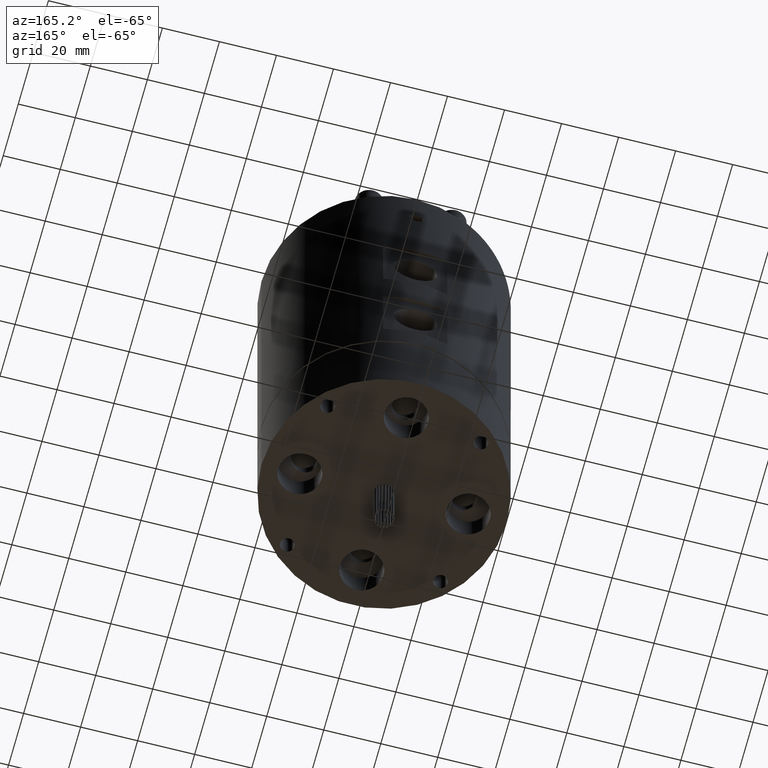
[diagram: clean part render]
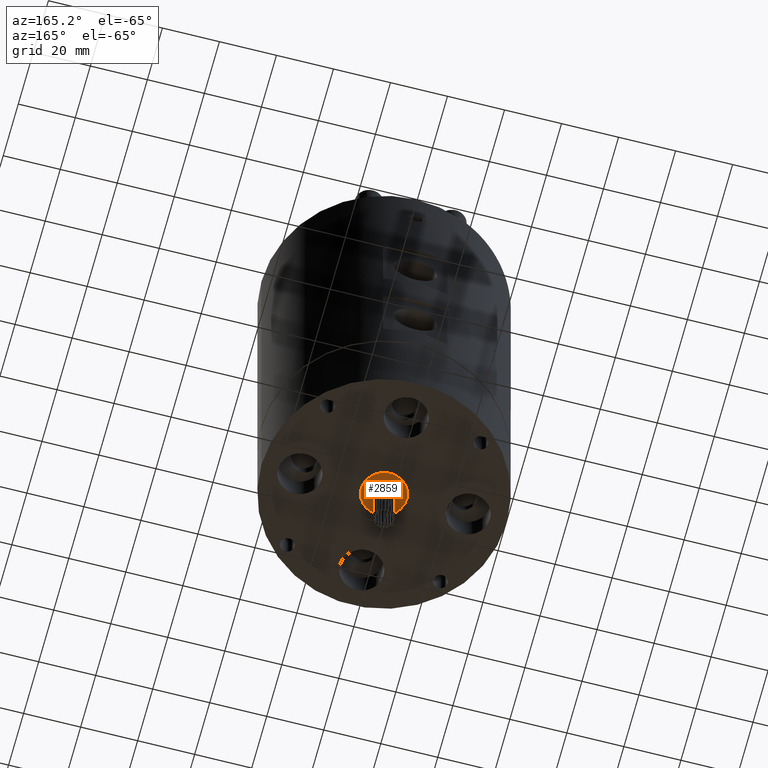
[diagram: same view with one face highlighted and labeled with its STEP entity id]
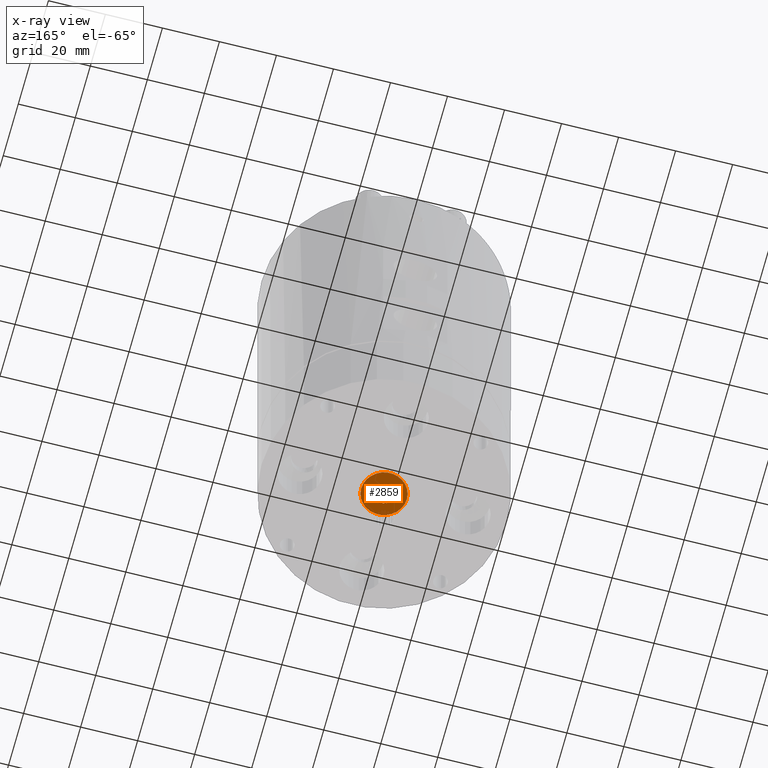
[diagram: x-ray of the same camera — body ghosted, the highlighted face saturated]
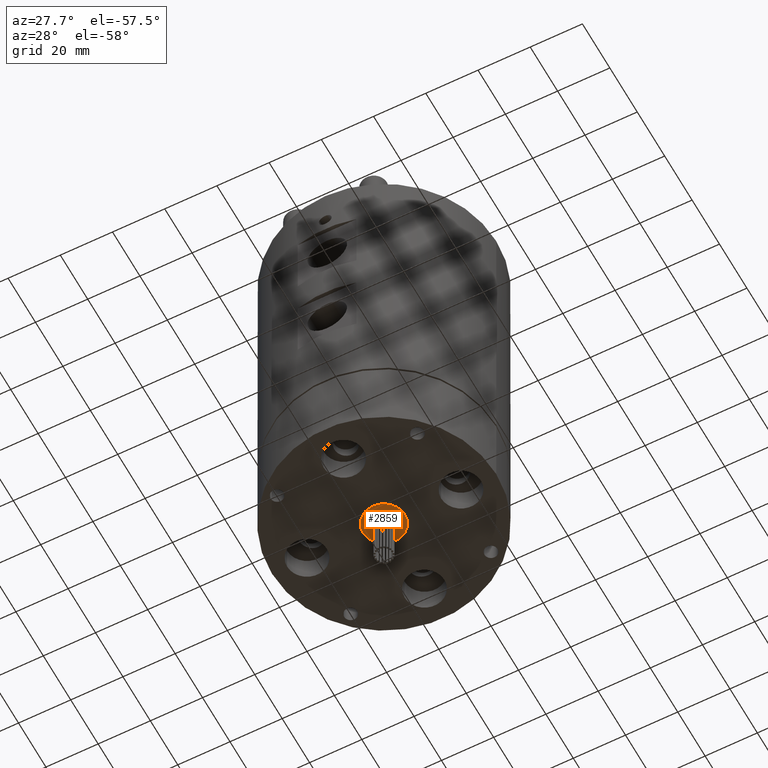
[diagram: same view with one face highlighted and labeled with its STEP entity id]
A machine part, auxiliary view. The second image highlights one B-rep face of the part: STEP entity #2859.
The next image is the same camera in x-ray: the body ghosted, the highlighted face saturated — about 0% of this face is hidden behind the body in this view.
A second angle (auxiliary view) of the same face is appended — the face is thin or edge-on in the first view.
In plain terms, the highlighted planar face has unit normal (0, 0, -1).
Its self-contained STEP definition (entity closure, byte-faithful):
#21 = FACE_BOUND ( 'NONE', #2101, .T. ) ;
#44 = DIRECTION ( 'NONE',  ( 0.0000000000000000000, 0.0000000000000000000, -1.000000000000000000 ) ) ;
#50 = CIRCLE ( 'NONE', #8599, 0.3999999999999997400 ) ;
#53 = AXIS2_PLACEMENT_3D ( 'NONE', #4240, #44, #4939 ) ;
#60 = VERTEX_POINT ( 'NONE', #2757 ) ;
#117 = CIRCLE ( 'NONE', #2785, 0.4000000000000006300 ) ;
#166 = EDGE_LOOP ( 'NONE', ( #3138, #1151 ) ) ;
#188 = DIRECTION ( 'NONE',  ( -1.000000000000000000, 0.0000000000000000000, 0.0000000000000000000 ) ) ;
#197 = DIRECTION ( 'NONE',  ( -1.000000000000000000, 0.0000000000000000000, 0.0000000000000000000 ) ) ;
#233 = FACE_BOUND ( 'NONE', #3782, .T. ) ;
#273 = CARTESIAN_POINT ( 'NONE',  ( 8.000000000000000000, 9.797174393178825700E-016, 0.1000000000000000100 ) ) ;
#278 = DIRECTION ( 'NONE',  ( 0.0000000000000000000, 0.0000000000000000000, -1.000000000000000000 ) ) ;
#305 = CARTESIAN_POINT ( 'NONE',  ( 2.612778192251610200, -1.178725548789799800, 0.1000000000000000100 ) ) ;
#412 = AXIS2_PLACEMENT_3D ( 'NONE', #1062, #5927, #1787 ) ;
#414 = CARTESIAN_POINT ( 'NONE',  ( 2.665592170507467000, 1.033620336100366400, 0.1000000000000000100 ) ) ;
#460 = CARTESIAN_POINT ( 'NONE',  ( 2.027937554184815500, -2.138070529251939100, 0.1000000000000000100 ) ) ;
#508 = CARTESIAN_POINT ( 'NONE',  ( -2.827937554184823300, 2.138070529252035400, 0.1000000000000000100 ) ) ;
#555 = CARTESIAN_POINT ( 'NONE',  ( 1.683981501920970300, 2.762323778318733800, 0.1000000000000000100 ) ) ;
#584 = ORIENTED_EDGE ( 'NONE', *, *, #4484, .T. ) ;
#591 = CARTESIAN_POINT ( 'NONE',  ( 1.037654616322646800, 3.171690865352353200, 0.1000000000000000100 ) ) ;
#596 = AXIS2_PLACEMENT_3D ( 'NONE', #7728, #3596, #8416 ) ;
#598 = VERTEX_POINT ( 'NONE', #591 ) ;
#612 = VERTEX_POINT ( 'NONE', #508 ) ;
#644 = ORIENTED_EDGE ( 'NONE', *, *, #4407, .F. ) ;
#645 = EDGE_LOOP ( 'NONE', ( #4006, #6352 ) ) ;
#647 = DIRECTION ( 'NONE',  ( -1.000000000000000000, 0.0000000000000000000, 0.0000000000000000000 ) ) ;
#654 = CARTESIAN_POINT ( 'NONE',  ( 3.012778192251610600, -1.178725548789799800, 0.1000000000000000100 ) ) ;
#716 = EDGE_CURVE ( 'NONE', #5091, #6036, #3409, .T. ) ;
#738 = CARTESIAN_POINT ( 'NONE',  ( 0.0000000000000000000, 0.0000000000000000000, 0.1000000000000000100 ) ) ;
#767 = CARTESIAN_POINT ( 'NONE',  ( -1.037654616322654100, -3.171690865352256000, 0.1000000000000000100 ) ) ;
#787 = AXIS2_PLACEMENT_3D ( 'NONE', #8994, #4849, #647 ) ;
#818 = VERTEX_POINT ( 'NONE', #2292 ) ;
#854 = CARTESIAN_POINT ( 'NONE',  ( -2.612778192251618200, 1.178725548789897100, 0.1000000000000000100 ) ) ;
#865 = VERTEX_POINT ( 'NONE', #4505 ) ;
#874 = EDGE_CURVE ( 'NONE', #3820, #8882, #7154, .T. ) ;
#897 = CIRCLE ( 'NONE', #7630, 0.4000000000000006300 ) ;
#909 = PLANE ( 'NONE',  #6412 ) ;
#932 = AXIS2_PLACEMENT_3D ( 'NONE', #7301, #3181, #8002 ) ;
#938 = VERTEX_POINT ( 'NONE', #6505 ) ;
#997 = CARTESIAN_POINT ( 'NONE',  ( 1.683981501920970300, 2.762323778318733800, 0.1000000000000000100 ) ) ;
#1023 = CARTESIAN_POINT ( 'NONE',  ( 0.4855828267840408000, -3.198505224852531600, 0.1000000000000000100 ) ) ;
#1033 = EDGE_LOOP ( 'NONE', ( #4115, #7427 ) ) ;
#1037 = VERTEX_POINT ( 'NONE', #7271 ) ;
#1051 = CARTESIAN_POINT ( 'NONE',  ( -1.550251814541312200, 2.839532649326028200, 0.1000000000000000100 ) ) ;
#1062 = CARTESIAN_POINT ( 'NONE',  ( 0.0000000000000000000, 0.0000000000000000000, 0.1000000000000000100 ) ) ;
#1111 = AXIS2_PLACEMENT_3D ( 'NONE', #7480, #3362, #8188 ) ;
#1128 = CIRCLE ( 'NONE', #1315, 0.3999999999999999700 ) ;
#1142 = AXIS2_PLACEMENT_3D ( 'NONE', #654, #5529, #1362 ) ;
#1151 = ORIENTED_EDGE ( 'NONE', *, *, #6637, .F. ) ;
#1177 = CIRCLE ( 'NONE', #932, 0.3999999999999993000 ) ;
#1187 = DIRECTION ( 'NONE',  ( 0.0000000000000000000, 0.0000000000000000000, -1.000000000000000000 ) ) ;
#1219 = EDGE_CURVE ( 'NONE', #8865, #4662, #6613, .T. ) ;
#1255 = ORIENTED_EDGE ( 'NONE', *, *, #5637, .F. ) ;
#1272 = DIRECTION ( 'NONE',  ( -1.000000000000000000, 0.0000000000000000000, 0.0000000000000000000 ) ) ;
#1273 = DIRECTION ( 'NONE',  ( 0.0000000000000000000, 0.0000000000000000000, -1.000000000000000000 ) ) ;
#1284 = DIRECTION ( 'NONE',  ( -1.000000000000000000, 0.0000000000000000000, 0.0000000000000000000 ) ) ;
#1293 = ORIENTED_EDGE ( 'NONE', *, *, #2654, .F. ) ;
#1299 = ORIENTED_EDGE ( 'NONE', *, *, #8974, .F. ) ;
#1315 = AXIS2_PLACEMENT_3D ( 'NONE', #2458, #7272, #3163 ) ;
#1343 = CIRCLE ( 'NONE', #787, 0.4000000000000006300 ) ;
#1362 = DIRECTION ( 'NONE',  ( -1.000000000000000000, 0.0000000000000000000, 0.0000000000000000000 ) ) ;
#1423 = EDGE_CURVE ( 'NONE', #8574, #7673, #1177, .T. ) ;
#1424 = ORIENTED_EDGE ( 'NONE', *, *, #2356, .T. ) ;
#1430 = DIRECTION ( 'NONE',  ( 0.0000000000000000000, 0.0000000000000000000, -1.000000000000000000 ) ) ;
#1431 = AXIS2_PLACEMENT_3D ( 'NONE', #4039, #8880, #4731 ) ;
#1455 = AXIS2_PLACEMENT_3D ( 'NONE', #1740, #6571, #2456 ) ;
#1457 = DIRECTION ( 'NONE',  ( -1.000000000000000000, 0.0000000000000000000, 0.0000000000000000000 ) ) ;
#1479 = ORIENTED_EDGE ( 'NONE', *, *, #1745, .F. ) ;
#1496 = AXIS2_PLACEMENT_3D ( 'NONE', #3599, #8418, #4290 ) ;
#1521 = EDGE_LOOP ( 'NONE', ( #644, #5977 ) ) ;
#1528 = AXIS2_PLACEMENT_3D ( 'NONE', #4035, #8874, #4727 ) ;
#1542 = CIRCLE ( 'NONE', #3705, 0.4000000000000006300 ) ;
#1583 = CARTESIAN_POINT ( 'NONE',  ( -8.000000000000000000, 0.0000000000000000000, 0.1000000000000000100 ) ) ;
#1609 = ORIENTED_EDGE ( 'NONE', *, *, #6389, .F. ) ;
#1628 = EDGE_CURVE ( 'NONE', #6035, #7829, #6382, .T. ) ;
#1654 = CIRCLE ( 'NONE', #1810, 0.4000000000000009100 ) ;
#1658 = FACE_BOUND ( 'NONE', #1033, .T. ) ;
#1678 = CARTESIAN_POINT ( 'NONE',  ( 2.127195365467565500, 2.019779676062781100, 0.1000000000000000100 ) ) ;
#1690 = EDGE_LOOP ( 'NONE', ( #8433, #6968 ) ) ;
#1711 = AXIS2_PLACEMENT_3D ( 'NONE', #2891, #7716, #3585 ) ;
#1717 = DIRECTION ( 'NONE',  ( -1.000000000000000000, 0.0000000000000000000, 0.0000000000000000000 ) ) ;
#1740 = CARTESIAN_POINT ( 'NONE',  ( -0.4855828267840489000, 3.198505224852628400, 0.1000000000000000100 ) ) ;
#1745 = EDGE_CURVE ( 'NONE', #1037, #5083, #7370, .T. ) ;
#1749 = DIRECTION ( 'NONE',  ( -1.000000000000000000, 0.0000000000000000000, 0.0000000000000000000 ) ) ;
#1758 = CARTESIAN_POINT ( 'NONE',  ( 0.4855828267840408000, -3.198505224852531600, 0.1000000000000000100 ) ) ;
#1774 = ORIENTED_EDGE ( 'NONE', *, *, #2776, .F. ) ;
#1775 = DIRECTION ( 'NONE',  ( -1.000000000000000000, 0.0000000000000000000, 0.0000000000000000000 ) ) ;
#1787 = DIRECTION ( 'NONE',  ( -1.000000000000000000, 0.0000000000000000000, 0.0000000000000000000 ) ) ;
#1809 = CARTESIAN_POINT ( 'NONE',  ( -2.834233316462286400, 0.07720887100734269400, 0.1000000000000000100 ) ) ;
#1810 = AXIS2_PLACEMENT_3D ( 'NONE', #1023, #5892, #1749 ) ;
#1847 = VERTEX_POINT ( 'NONE', #1809 ) ;
#1871 = ORIENTED_EDGE ( 'NONE', *, *, #3913, .F. ) ;
#1880 = DIRECTION ( 'NONE',  ( 0.0000000000000000000, 0.0000000000000000000, -1.000000000000000000 ) ) ;
#1897 = FACE_BOUND ( 'NONE', #5345, .T. ) ;
#1958 = EDGE_CURVE ( 'NONE', #598, #3619, #3340, .T. ) ;
#1997 = EDGE_CURVE ( 'NONE', #612, #5295, #6777, .T. ) ;
#2012 = CIRCLE ( 'NONE', #3376, 0.4000000000000004100 ) ;
#2038 = CARTESIAN_POINT ( 'NONE',  ( 1.150251814541305700, -2.839532649325930500, 0.1000000000000000100 ) ) ;
#2090 = AXIS2_PLACEMENT_3D ( 'NONE', #1758, #6594, #2474 ) ;
#2101 = EDGE_LOOP ( 'NONE', ( #2924, #3921 ) ) ;
#2117 = AXIS2_PLACEMENT_3D ( 'NONE', #7652, #3518, #8342 ) ;
#2123 = FACE_BOUND ( 'NONE', #4982, .T. ) ;
#2221 = CARTESIAN_POINT ( 'NONE',  ( -3.012778192251618600, 1.178725548789897100, 0.1000000000000000100 ) ) ;
#2264 = DIRECTION ( 'NONE',  ( 0.0000000000000000000, 0.0000000000000000000, -1.000000000000000000 ) ) ;
#2292 = CARTESIAN_POINT ( 'NONE',  ( -1.283981501920977900, -2.762323778318636100, 0.1000000000000000100 ) ) ;
#2307 = AXIS2_PLACEMENT_3D ( 'NONE', #6653, #2534, #7351 ) ;
#2356 = EDGE_CURVE ( 'NONE', #4424, #7043, #5579, .T. ) ;
#2368 = CIRCLE ( 'NONE', #6268, 0.4000000000000006300 ) ;
#2405 = DIRECTION ( 'NONE',  ( 0.0000000000000000000, 0.0000000000000000000, -1.000000000000000000 ) ) ;
#2443 = CIRCLE ( 'NONE', #6176, 0.4000000000000006300 ) ;
#2456 = DIRECTION ( 'NONE',  ( -1.000000000000000000, 0.0000000000000000000, 0.0000000000000000000 ) ) ;
#2458 = CARTESIAN_POINT ( 'NONE',  ( 0.6376546163226469700, 3.171690865352353200, 0.1000000000000000100 ) ) ;
#2474 = DIRECTION ( 'NONE',  ( -1.000000000000000000, 0.0000000000000000000, 0.0000000000000000000 ) ) ;
#2534 = DIRECTION ( 'NONE',  ( 0.0000000000000000000, 0.0000000000000000000, -1.000000000000000000 ) ) ;
#2549 = DIRECTION ( 'NONE',  ( 0.0000000000000000000, 0.0000000000000000000, -1.000000000000000000 ) ) ;
#2562 = AXIS2_PLACEMENT_3D ( 'NONE', #7997, #3863, #8694 ) ;
#2583 = CIRCLE ( 'NONE', #5058, 0.4000000000000006300 ) ;
#2654 = EDGE_CURVE ( 'NONE', #3474, #818, #2012, .T. ) ;
#2757 = CARTESIAN_POINT ( 'NONE',  ( 3.412778192251611400, -1.178725548789799800, 0.1000000000000000100 ) ) ;
#2776 = EDGE_CURVE ( 'NONE', #7829, #6035, #6651, .T. ) ;
#2780 = DIRECTION ( 'NONE',  ( 0.0000000000000000000, 0.0000000000000000000, -1.000000000000000000 ) ) ;
#2785 = AXIS2_PLACEMENT_3D ( 'NONE', #3924, #8749, #4617 ) ;
#2818 = ORIENTED_EDGE ( 'NONE', *, *, #1958, .F. ) ;
#2857 = VERTEX_POINT ( 'NONE', #4404 ) ;
#2859 = ADVANCED_FACE ( 'NONE', ( #8291, #6002, #7633, #5781, #3971, #4186, #2123, #233, #7408, #5571, #3743, #1897, #21, #7182, #5360, #3533, #1658, #8833, #6979 ), #909, .T. ) ;
#2891 = CARTESIAN_POINT ( 'NONE',  ( -3.012778192251618600, 1.178725548789897100, 0.1000000000000000100 ) ) ;
#2924 = ORIENTED_EDGE ( 'NONE', *, *, #1219, .F. ) ;
#2927 = DIRECTION ( 'NONE',  ( -1.000000000000000000, 0.0000000000000000000, 0.0000000000000000000 ) ) ;
#2997 = EDGE_CURVE ( 'NONE', #865, #8531, #3853, .T. ) ;
#3001 = EDGE_CURVE ( 'NONE', #8374, #3301, #5668, .T. ) ;
#3043 = CARTESIAN_POINT ( 'NONE',  ( 0.0000000000000000000, 0.0000000000000000000, 0.1000000000000000100 ) ) ;
#3047 = AXIS2_PLACEMENT_3D ( 'NONE', #5584, #1430, #6273 ) ;
#3053 = VERTEX_POINT ( 'NONE', #8030 ) ;
#3092 = VERTEX_POINT ( 'NONE', #8751 ) ;
#3138 = ORIENTED_EDGE ( 'NONE', *, *, #3803, .F. ) ;
#3159 = CARTESIAN_POINT ( 'NONE',  ( -1.550251814541312200, 2.839532649326028200, 0.1000000000000000100 ) ) ;
#3163 = DIRECTION ( 'NONE',  ( -1.000000000000000000, 0.0000000000000000000, 0.0000000000000000000 ) ) ;
#3181 = DIRECTION ( 'NONE',  ( 0.0000000000000000000, 0.0000000000000000000, -1.000000000000000000 ) ) ;
#3237 = CARTESIAN_POINT ( 'NONE',  ( 3.465592170507465900, 1.033620336100366400, 0.1000000000000000100 ) ) ;
#3254 = CIRCLE ( 'NONE', #2117, 0.4000000000000004100 ) ;
#3282 = ORIENTED_EDGE ( 'NONE', *, *, #8497, .F. ) ;
#3301 = VERTEX_POINT ( 'NONE', #3469 ) ;
#3307 = AXIS2_PLACEMENT_3D ( 'NONE', #5365, #1187, #6050 ) ;
#3340 = CIRCLE ( 'NONE', #1528, 0.3999999999999999700 ) ;
#3362 = DIRECTION ( 'NONE',  ( 0.0000000000000000000, 0.0000000000000000000, -1.000000000000000000 ) ) ;
#3376 = AXIS2_PLACEMENT_3D ( 'NONE', #6901, #2780, #7605 ) ;
#3409 = CIRCLE ( 'NONE', #53, 0.4000000000000006300 ) ;
#3469 = CARTESIAN_POINT ( 'NONE',  ( -2.665592170507473700, -1.033620336100268900, 0.1000000000000000100 ) ) ;
#3474 = VERTEX_POINT ( 'NONE', #7582 ) ;
#3518 = DIRECTION ( 'NONE',  ( 0.0000000000000000000, 0.0000000000000000000, -1.000000000000000000 ) ) ;
#3533 = FACE_BOUND ( 'NONE', #6798, .T. ) ;
#3535 = DIRECTION ( 'NONE',  ( 0.0000000000000000000, 0.0000000000000000000, -1.000000000000000000 ) ) ;
#3566 = VERTEX_POINT ( 'NONE', #767 ) ;
#3569 = VERTEX_POINT ( 'NONE', #6320 ) ;
#3585 = DIRECTION ( 'NONE',  ( -1.000000000000000000, 0.0000000000000000000, 0.0000000000000000000 ) ) ;
#3596 = DIRECTION ( 'NONE',  ( 0.0000000000000000000, 0.0000000000000000000, -1.000000000000000000 ) ) ;
#3599 = CARTESIAN_POINT ( 'NONE',  ( -3.065592170507474000, -1.033620336100268900, 0.1000000000000000100 ) ) ;
#3619 = VERTEX_POINT ( 'NONE', #5720 ) ;
#3683 = EDGE_LOOP ( 'NONE', ( #7233, #8453 ) ) ;
#3705 = AXIS2_PLACEMENT_3D ( 'NONE', #6013, #1880, #6713 ) ;
#3723 = ORIENTED_EDGE ( 'NONE', *, *, #4208, .F. ) ;
#3734 = DIRECTION ( 'NONE',  ( -1.000000000000000000, 0.0000000000000000000, -0.0000000000000000000 ) ) ;
#3743 = FACE_BOUND ( 'NONE', #166, .T. ) ;
#3782 = EDGE_LOOP ( 'NONE', ( #4016, #6509 ) ) ;
#3797 = CIRCLE ( 'NONE', #1431, 0.4000000000000006300 ) ;
#3803 = EDGE_CURVE ( 'NONE', #8016, #5297, #897, .T. ) ;
#3820 = VERTEX_POINT ( 'NONE', #7295 ) ;
#3843 = DIRECTION ( 'NONE',  ( -1.000000000000000000, 0.0000000000000000000, 0.0000000000000000000 ) ) ;
#3853 = CIRCLE ( 'NONE', #2090, 0.4000000000000009100 ) ;
#3863 = DIRECTION ( 'NONE',  ( 0.0000000000000000000, 0.0000000000000000000, -1.000000000000000000 ) ) ;
#3864 = CARTESIAN_POINT ( 'NONE',  ( 3.234233316462279200, -0.07720887100724498100, 0.1000000000000000100 ) ) ;
#3913 = EDGE_CURVE ( 'NONE', #818, #3474, #6982, .T. ) ;
#3921 = ORIENTED_EDGE ( 'NONE', *, *, #5216, .F. ) ;
#3924 = CARTESIAN_POINT ( 'NONE',  ( -0.6376546163226536300, -3.171690865352256000, 0.1000000000000000100 ) ) ;
#3971 = FACE_BOUND ( 'NONE', #1521, .T. ) ;
#4003 = AXIS2_PLACEMENT_3D ( 'NONE', #738, #5605, #1457 ) ;
#4006 = ORIENTED_EDGE ( 'NONE', *, *, #7293, .F. ) ;
#4016 = ORIENTED_EDGE ( 'NONE', *, *, #8943, .F. ) ;
#4035 = CARTESIAN_POINT ( 'NONE',  ( 0.6376546163226469700, 3.171690865352353200, 0.1000000000000000100 ) ) ;
#4039 = CARTESIAN_POINT ( 'NONE',  ( 2.427937554184815800, -2.138070529251939100, 0.1000000000000000100 ) ) ;
#4068 = CIRCLE ( 'NONE', #2307, 0.4000000000000006300 ) ;
#4100 = VERTEX_POINT ( 'NONE', #6720 ) ;
#4102 = CIRCLE ( 'NONE', #7066, 0.4000000000000000800 ) ;
#4115 = ORIENTED_EDGE ( 'NONE', *, *, #4565, .F. ) ;
#4121 = ORIENTED_EDGE ( 'NONE', *, *, #7917, .F. ) ;
#4184 = CIRCLE ( 'NONE', #6337, 0.3999999999999993000 ) ;
#4186 = FACE_BOUND ( 'NONE', #645, .T. ) ;
#4208 = EDGE_CURVE ( 'NONE', #7673, #8574, #4184, .T. ) ;
#4240 = CARTESIAN_POINT ( 'NONE',  ( 2.527195365467566300, 2.019779676062781100, 0.1000000000000000100 ) ) ;
#4268 = CARTESIAN_POINT ( 'NONE',  ( 2.827937554184816600, -2.138070529251939100, 0.1000000000000000100 ) ) ;
#4290 = DIRECTION ( 'NONE',  ( -1.000000000000000000, 0.0000000000000000000, 0.0000000000000000000 ) ) ;
#4378 = DIRECTION ( 'NONE',  ( 0.0000000000000000000, 0.0000000000000000000, -1.000000000000000000 ) ) ;
#4388 = DIRECTION ( 'NONE',  ( 0.0000000000000000000, 0.0000000000000000000, -1.000000000000000000 ) ) ;
#4404 = CARTESIAN_POINT ( 'NONE',  ( -0.2376546163226529700, -3.171690865352256000, 0.1000000000000000100 ) ) ;
#4407 = EDGE_CURVE ( 'NONE', #6036, #5091, #2443, .T. ) ;
#4424 = VERTEX_POINT ( 'NONE', #273 ) ;
#4453 = VERTEX_POINT ( 'NONE', #305 ) ;
#4459 = CARTESIAN_POINT ( 'NONE',  ( 2.083981501920970600, 2.762323778318733800, 0.1000000000000000100 ) ) ;
#4466 = CARTESIAN_POINT ( 'NONE',  ( -2.527195365467573400, -2.019779676062683400, 0.1000000000000000100 ) ) ;
#4484 = EDGE_CURVE ( 'NONE', #7043, #4424, #7514, .T. ) ;
#4505 = CARTESIAN_POINT ( 'NONE',  ( 0.8855828267840417700, -3.198505224852531600, 0.1000000000000000100 ) ) ;
#4510 = EDGE_CURVE ( 'NONE', #3053, #8872, #4068, .T. ) ;
#4513 = EDGE_CURVE ( 'NONE', #3566, #2857, #117, .T. ) ;
#4516 = AXIS2_PLACEMENT_3D ( 'NONE', #997, #5854, #1717 ) ;
#4543 = EDGE_LOOP ( 'NONE', ( #584, #1424 ) ) ;
#4562 = DIRECTION ( 'NONE',  ( -1.000000000000000000, 0.0000000000000000000, 0.0000000000000000000 ) ) ;
#4565 = EDGE_CURVE ( 'NONE', #5295, #612, #1542, .T. ) ;
#4612 = AXIS2_PLACEMENT_3D ( 'NONE', #555, #5443, #1272 ) ;
#4617 = DIRECTION ( 'NONE',  ( -1.000000000000000000, 0.0000000000000000000, 0.0000000000000000000 ) ) ;
#4662 = VERTEX_POINT ( 'NONE', #460 ) ;
#4727 = DIRECTION ( 'NONE',  ( -1.000000000000000000, 0.0000000000000000000, 0.0000000000000000000 ) ) ;
#4731 = DIRECTION ( 'NONE',  ( -1.000000000000000000, 0.0000000000000000000, 0.0000000000000000000 ) ) ;
#4849 = DIRECTION ( 'NONE',  ( 0.0000000000000000000, 0.0000000000000000000, -1.000000000000000000 ) ) ;
#4888 = ORIENTED_EDGE ( 'NONE', *, *, #6557, .F. ) ;
#4919 = EDGE_LOOP ( 'NONE', ( #1871, #1293 ) ) ;
#4939 = DIRECTION ( 'NONE',  ( -1.000000000000000000, 0.0000000000000000000, 0.0000000000000000000 ) ) ;
#4982 = EDGE_LOOP ( 'NONE', ( #8881, #7464 ) ) ;
#5058 = AXIS2_PLACEMENT_3D ( 'NONE', #6663, #2549, #7365 ) ;
#5083 = VERTEX_POINT ( 'NONE', #4459 ) ;
#5091 = VERTEX_POINT ( 'NONE', #1678 ) ;
#5161 = DIRECTION ( 'NONE',  ( -1.000000000000000000, 0.0000000000000000000, 0.0000000000000000000 ) ) ;
#5169 = EDGE_LOOP ( 'NONE', ( #2818, #4888 ) ) ;
#5216 = EDGE_CURVE ( 'NONE', #4662, #8865, #3797, .T. ) ;
#5271 = AXIS2_PLACEMENT_3D ( 'NONE', #5444, #1273, #1284 ) ;
#5295 = VERTEX_POINT ( 'NONE', #7852 ) ;
#5296 = CIRCLE ( 'NONE', #1142, 0.4000000000000006300 ) ;
#5297 = VERTEX_POINT ( 'NONE', #5786 ) ;
#5310 = ORIENTED_EDGE ( 'NONE', *, *, #1423, .F. ) ;
#5345 = EDGE_LOOP ( 'NONE', ( #6484, #3282 ) ) ;
#5360 = FACE_BOUND ( 'NONE', #7562, .T. ) ;
#5365 = CARTESIAN_POINT ( 'NONE',  ( -1.683981501920978300, -2.762323778318636100, 0.1000000000000000100 ) ) ;
#5443 = DIRECTION ( 'NONE',  ( 0.0000000000000000000, 0.0000000000000000000, -1.000000000000000000 ) ) ;
#5444 = CARTESIAN_POINT ( 'NONE',  ( -2.427937554184822900, 2.138070529252035400, 0.1000000000000000100 ) ) ;
#5529 = DIRECTION ( 'NONE',  ( 0.0000000000000000000, 0.0000000000000000000, -1.000000000000000000 ) ) ;
#5571 = FACE_OUTER_BOUND ( 'NONE', #4543, .T. ) ;
#5579 = CIRCLE ( 'NONE', #4003, 8.000000000000000000 ) ;
#5584 = CARTESIAN_POINT ( 'NONE',  ( 1.550251814541306000, -2.839532649325930500, 0.1000000000000000100 ) ) ;
#5605 = DIRECTION ( 'NONE',  ( 0.0000000000000000000, 0.0000000000000000000, -1.000000000000000000 ) ) ;
#5637 = EDGE_CURVE ( 'NONE', #4100, #1847, #6041, .T. ) ;
#5668 = CIRCLE ( 'NONE', #2562, 0.4000000000000001900 ) ;
#5720 = CARTESIAN_POINT ( 'NONE',  ( 0.2376546163226470100, 3.171690865352353200, 0.1000000000000000100 ) ) ;
#5781 = FACE_BOUND ( 'NONE', #5169, .T. ) ;
#5786 = CARTESIAN_POINT ( 'NONE',  ( 2.834233316462278400, -0.07720887100724492500, 0.1000000000000000100 ) ) ;
#5854 = DIRECTION ( 'NONE',  ( 0.0000000000000000000, 0.0000000000000000000, -1.000000000000000000 ) ) ;
#5885 = CARTESIAN_POINT ( 'NONE',  ( 2.927195365467566600, 2.019779676062781100, 0.1000000000000000100 ) ) ;
#5892 = DIRECTION ( 'NONE',  ( 0.0000000000000000000, 0.0000000000000000000, -1.000000000000000000 ) ) ;
#5915 = DIRECTION ( 'NONE',  ( 0.0000000000000000000, 0.0000000000000000000, -1.000000000000000000 ) ) ;
#5927 = DIRECTION ( 'NONE',  ( 0.0000000000000000000, 0.0000000000000000000, -1.000000000000000000 ) ) ;
#5970 = ORIENTED_EDGE ( 'NONE', *, *, #9030, .F. ) ;
#5977 = ORIENTED_EDGE ( 'NONE', *, *, #716, .F. ) ;
#6002 = FACE_BOUND ( 'NONE', #7516, .T. ) ;
#6013 = CARTESIAN_POINT ( 'NONE',  ( -2.427937554184822900, 2.138070529252035400, 0.1000000000000000100 ) ) ;
#6035 = VERTEX_POINT ( 'NONE', #6573 ) ;
#6036 = VERTEX_POINT ( 'NONE', #5885 ) ;
#6038 = EDGE_CURVE ( 'NONE', #8882, #3820, #8752, .T. ) ;
#6041 = CIRCLE ( 'NONE', #596, 0.3999999999999997400 ) ;
#6050 = DIRECTION ( 'NONE',  ( -1.000000000000000000, 0.0000000000000000000, 0.0000000000000000000 ) ) ;
#6176 = AXIS2_PLACEMENT_3D ( 'NONE', #6521, #2405, #7224 ) ;
#6268 = AXIS2_PLACEMENT_3D ( 'NONE', #6386, #2264, #7084 ) ;
#6273 = DIRECTION ( 'NONE',  ( -1.000000000000000000, 0.0000000000000000000, 0.0000000000000000000 ) ) ;
#6296 = CARTESIAN_POINT ( 'NONE',  ( -2.927195365467573800, -2.019779676062683400, 0.1000000000000000100 ) ) ;
#6320 = CARTESIAN_POINT ( 'NONE',  ( -0.08558282678404878500, 3.198505224852628400, 0.1000000000000000100 ) ) ;
#6332 = EDGE_CURVE ( 'NONE', #3301, #8374, #6568, .T. ) ;
#6334 = CARTESIAN_POINT ( 'NONE',  ( -3.465592170507473900, -1.033620336100268900, 0.1000000000000000100 ) ) ;
#6337 = AXIS2_PLACEMENT_3D ( 'NONE', #7665, #3535, #8359 ) ;
#6352 = ORIENTED_EDGE ( 'NONE', *, *, #8744, .F. ) ;
#6382 = CIRCLE ( 'NONE', #1711, 0.4000000000000001900 ) ;
#6386 = CARTESIAN_POINT ( 'NONE',  ( -0.6376546163226536300, -3.171690865352256000, 0.1000000000000000100 ) ) ;
#6389 = EDGE_CURVE ( 'NONE', #3569, #938, #4102, .T. ) ;
#6412 = AXIS2_PLACEMENT_3D ( 'NONE', #3043, #7867, #3734 ) ;
#6484 = ORIENTED_EDGE ( 'NONE', *, *, #2997, .F. ) ;
#6488 = AXIS2_PLACEMENT_3D ( 'NONE', #4466, #278, #5161 ) ;
#6505 = CARTESIAN_POINT ( 'NONE',  ( -0.8855828267840490900, 3.198505224852628400, 0.1000000000000000100 ) ) ;
#6509 = ORIENTED_EDGE ( 'NONE', *, *, #4513, .F. ) ;
#6521 = CARTESIAN_POINT ( 'NONE',  ( 2.527195365467566300, 2.019779676062781100, 0.1000000000000000100 ) ) ;
#6557 = EDGE_CURVE ( 'NONE', #3619, #598, #1128, .T. ) ;
#6568 = CIRCLE ( 'NONE', #1496, 0.4000000000000001900 ) ;
#6571 = DIRECTION ( 'NONE',  ( 0.0000000000000000000, 0.0000000000000000000, -1.000000000000000000 ) ) ;
#6573 = CARTESIAN_POINT ( 'NONE',  ( -3.412778192251618500, 1.178725548789897100, 0.1000000000000000100 ) ) ;
#6594 = DIRECTION ( 'NONE',  ( 0.0000000000000000000, 0.0000000000000000000, -1.000000000000000000 ) ) ;
#6613 = CIRCLE ( 'NONE', #1111, 0.4000000000000006300 ) ;
#6624 = CARTESIAN_POINT ( 'NONE',  ( 3.634233316462279500, -0.07720887100724498100, 0.1000000000000000100 ) ) ;
#6637 = EDGE_CURVE ( 'NONE', #5297, #8016, #2583, .T. ) ;
#6651 = CIRCLE ( 'NONE', #8935, 0.4000000000000001900 ) ;
#6653 = CARTESIAN_POINT ( 'NONE',  ( -2.527195365467573400, -2.019779676062683400, 0.1000000000000000100 ) ) ;
#6663 = CARTESIAN_POINT ( 'NONE',  ( 3.234233316462279200, -0.07720887100724498100, 0.1000000000000000100 ) ) ;
#6713 = DIRECTION ( 'NONE',  ( -1.000000000000000000, 0.0000000000000000000, 0.0000000000000000000 ) ) ;
#6720 = CARTESIAN_POINT ( 'NONE',  ( -3.634233316462285800, 0.07720887100734275000, 0.1000000000000000100 ) ) ;
#6777 = CIRCLE ( 'NONE', #5271, 0.4000000000000006300 ) ;
#6798 = EDGE_LOOP ( 'NONE', ( #1609, #5970 ) ) ;
#6901 = CARTESIAN_POINT ( 'NONE',  ( -1.683981501920978300, -2.762323778318636100, 0.1000000000000000100 ) ) ;
#6968 = ORIENTED_EDGE ( 'NONE', *, *, #6038, .F. ) ;
#6979 = FACE_BOUND ( 'NONE', #8554, .T. ) ;
#6982 = CIRCLE ( 'NONE', #3307, 0.4000000000000004100 ) ;
#7011 = EDGE_LOOP ( 'NONE', ( #3723, #5310 ) ) ;
#7043 = VERTEX_POINT ( 'NONE', #1583 ) ;
#7045 = DIRECTION ( 'NONE',  ( 0.0000000000000000000, 0.0000000000000000000, -1.000000000000000000 ) ) ;
#7066 = AXIS2_PLACEMENT_3D ( 'NONE', #8508, #4378, #188 ) ;
#7084 = DIRECTION ( 'NONE',  ( -1.000000000000000000, 0.0000000000000000000, 0.0000000000000000000 ) ) ;
#7154 = CIRCLE ( 'NONE', #8919, 0.4000000000000006300 ) ;
#7182 = FACE_BOUND ( 'NONE', #7011, .T. ) ;
#7224 = DIRECTION ( 'NONE',  ( -1.000000000000000000, 0.0000000000000000000, 0.0000000000000000000 ) ) ;
#7233 = ORIENTED_EDGE ( 'NONE', *, *, #6332, .F. ) ;
#7271 = CARTESIAN_POINT ( 'NONE',  ( 1.283981501920970200, 2.762323778318733800, 0.1000000000000000100 ) ) ;
#7272 = DIRECTION ( 'NONE',  ( 0.0000000000000000000, 0.0000000000000000000, -1.000000000000000000 ) ) ;
#7293 = EDGE_CURVE ( 'NONE', #60, #4453, #1343, .T. ) ;
#7295 = CARTESIAN_POINT ( 'NONE',  ( -1.150251814541311600, 2.839532649326028200, 0.1000000000000000100 ) ) ;
#7301 = CARTESIAN_POINT ( 'NONE',  ( 3.065592170507466500, 1.033620336100366400, 0.1000000000000000100 ) ) ;
#7351 = DIRECTION ( 'NONE',  ( -1.000000000000000000, 0.0000000000000000000, 0.0000000000000000000 ) ) ;
#7365 = DIRECTION ( 'NONE',  ( -1.000000000000000000, 0.0000000000000000000, 0.0000000000000000000 ) ) ;
#7370 = CIRCLE ( 'NONE', #4516, 0.3999999999999999700 ) ;
#7408 = FACE_BOUND ( 'NONE', #4919, .T. ) ;
#7427 = ORIENTED_EDGE ( 'NONE', *, *, #1997, .F. ) ;
#7464 = ORIENTED_EDGE ( 'NONE', *, *, #8800, .F. ) ;
#7480 = CARTESIAN_POINT ( 'NONE',  ( 2.427937554184815800, -2.138070529251939100, 0.1000000000000000100 ) ) ;
#7514 = CIRCLE ( 'NONE', #412, 8.000000000000000000 ) ;
#7516 = EDGE_LOOP ( 'NONE', ( #1774, #8355 ) ) ;
#7557 = ORIENTED_EDGE ( 'NONE', *, *, #8663, .F. ) ;
#7562 = EDGE_LOOP ( 'NONE', ( #7557, #1479 ) ) ;
#7566 = CIRCLE ( 'NONE', #4612, 0.3999999999999999700 ) ;
#7582 = CARTESIAN_POINT ( 'NONE',  ( -2.083981501920978600, -2.762323778318636100, 0.1000000000000000100 ) ) ;
#7605 = DIRECTION ( 'NONE',  ( -1.000000000000000000, 0.0000000000000000000, 0.0000000000000000000 ) ) ;
#7630 = AXIS2_PLACEMENT_3D ( 'NONE', #3864, #8696, #4562 ) ;
#7633 = FACE_BOUND ( 'NONE', #1690, .T. ) ;
#7639 = CIRCLE ( 'NONE', #6488, 0.4000000000000006300 ) ;
#7652 = CARTESIAN_POINT ( 'NONE',  ( 1.550251814541306000, -2.839532649325930500, 0.1000000000000000100 ) ) ;
#7665 = CARTESIAN_POINT ( 'NONE',  ( 3.065592170507466500, 1.033620336100366400, 0.1000000000000000100 ) ) ;
#7673 = VERTEX_POINT ( 'NONE', #3237 ) ;
#7716 = DIRECTION ( 'NONE',  ( 0.0000000000000000000, 0.0000000000000000000, -1.000000000000000000 ) ) ;
#7728 = CARTESIAN_POINT ( 'NONE',  ( -3.234233316462285800, 0.07720887100734269400, 0.1000000000000000100 ) ) ;
#7742 = CARTESIAN_POINT ( 'NONE',  ( -1.950251814541313000, 2.839532649326028200, 0.1000000000000000100 ) ) ;
#7829 = VERTEX_POINT ( 'NONE', #854 ) ;
#7852 = CARTESIAN_POINT ( 'NONE',  ( -2.027937554184822100, 2.138070529252035400, 0.1000000000000000100 ) ) ;
#7867 = DIRECTION ( 'NONE',  ( 0.0000000000000000000, 0.0000000000000000000, -1.000000000000000000 ) ) ;
#7917 = EDGE_CURVE ( 'NONE', #8872, #3053, #7639, .T. ) ;
#7979 = DIRECTION ( 'NONE',  ( 0.0000000000000000000, 0.0000000000000000000, -1.000000000000000000 ) ) ;
#7986 = CARTESIAN_POINT ( 'NONE',  ( 0.08558282678403988900, -3.198505224852531600, 0.1000000000000000100 ) ) ;
#7997 = CARTESIAN_POINT ( 'NONE',  ( -3.065592170507474000, -1.033620336100268900, 0.1000000000000000100 ) ) ;
#8002 = DIRECTION ( 'NONE',  ( -1.000000000000000000, 0.0000000000000000000, 0.0000000000000000000 ) ) ;
#8016 = VERTEX_POINT ( 'NONE', #6624 ) ;
#8030 = CARTESIAN_POINT ( 'NONE',  ( -2.127195365467572600, -2.019779676062683400, 0.1000000000000000100 ) ) ;
#8170 = VERTEX_POINT ( 'NONE', #2038 ) ;
#8188 = DIRECTION ( 'NONE',  ( -1.000000000000000000, 0.0000000000000000000, 0.0000000000000000000 ) ) ;
#8291 = FACE_BOUND ( 'NONE', #3683, .T. ) ;
#8342 = DIRECTION ( 'NONE',  ( -1.000000000000000000, 0.0000000000000000000, 0.0000000000000000000 ) ) ;
#8346 = AXIS2_PLACEMENT_3D ( 'NONE', #1051, #5915, #1775 ) ;
#8355 = ORIENTED_EDGE ( 'NONE', *, *, #1628, .F. ) ;
#8359 = DIRECTION ( 'NONE',  ( -1.000000000000000000, 0.0000000000000000000, 0.0000000000000000000 ) ) ;
#8374 = VERTEX_POINT ( 'NONE', #6334 ) ;
#8416 = DIRECTION ( 'NONE',  ( -1.000000000000000000, 0.0000000000000000000, 0.0000000000000000000 ) ) ;
#8418 = DIRECTION ( 'NONE',  ( 0.0000000000000000000, 0.0000000000000000000, -1.000000000000000000 ) ) ;
#8433 = ORIENTED_EDGE ( 'NONE', *, *, #874, .F. ) ;
#8453 = ORIENTED_EDGE ( 'NONE', *, *, #3001, .F. ) ;
#8497 = EDGE_CURVE ( 'NONE', #8531, #865, #1654, .T. ) ;
#8508 = CARTESIAN_POINT ( 'NONE',  ( -0.4855828267840489000, 3.198505224852628400, 0.1000000000000000100 ) ) ;
#8516 = CARTESIAN_POINT ( 'NONE',  ( -3.234233316462285800, 0.07720887100734269400, 0.1000000000000000100 ) ) ;
#8531 = VERTEX_POINT ( 'NONE', #7986 ) ;
#8554 = EDGE_LOOP ( 'NONE', ( #8635, #4121 ) ) ;
#8574 = VERTEX_POINT ( 'NONE', #414 ) ;
#8599 = AXIS2_PLACEMENT_3D ( 'NONE', #8516, #4388, #197 ) ;
#8635 = ORIENTED_EDGE ( 'NONE', *, *, #4510, .F. ) ;
#8663 = EDGE_CURVE ( 'NONE', #5083, #1037, #7566, .T. ) ;
#8694 = DIRECTION ( 'NONE',  ( -1.000000000000000000, 0.0000000000000000000, 0.0000000000000000000 ) ) ;
#8696 = DIRECTION ( 'NONE',  ( 0.0000000000000000000, 0.0000000000000000000, -1.000000000000000000 ) ) ;
#8744 = EDGE_CURVE ( 'NONE', #4453, #60, #5296, .T. ) ;
#8749 = DIRECTION ( 'NONE',  ( 0.0000000000000000000, 0.0000000000000000000, -1.000000000000000000 ) ) ;
#8751 = CARTESIAN_POINT ( 'NONE',  ( 1.950251814541306400, -2.839532649325930500, 0.1000000000000000100 ) ) ;
#8752 = CIRCLE ( 'NONE', #8346, 0.4000000000000006300 ) ;
#8760 = CIRCLE ( 'NONE', #3047, 0.4000000000000004100 ) ;
#8800 = EDGE_CURVE ( 'NONE', #8170, #3092, #3254, .T. ) ;
#8811 = EDGE_CURVE ( 'NONE', #3092, #8170, #8760, .T. ) ;
#8833 = FACE_BOUND ( 'NONE', #8875, .T. ) ;
#8865 = VERTEX_POINT ( 'NONE', #4268 ) ;
#8870 = CIRCLE ( 'NONE', #1455, 0.4000000000000000800 ) ;
#8872 = VERTEX_POINT ( 'NONE', #6296 ) ;
#8874 = DIRECTION ( 'NONE',  ( 0.0000000000000000000, 0.0000000000000000000, -1.000000000000000000 ) ) ;
#8875 = EDGE_LOOP ( 'NONE', ( #1299, #1255 ) ) ;
#8880 = DIRECTION ( 'NONE',  ( 0.0000000000000000000, 0.0000000000000000000, -1.000000000000000000 ) ) ;
#8881 = ORIENTED_EDGE ( 'NONE', *, *, #8811, .F. ) ;
#8882 = VERTEX_POINT ( 'NONE', #7742 ) ;
#8919 = AXIS2_PLACEMENT_3D ( 'NONE', #3159, #7979, #3843 ) ;
#8935 = AXIS2_PLACEMENT_3D ( 'NONE', #2221, #7045, #2927 ) ;
#8943 = EDGE_CURVE ( 'NONE', #2857, #3566, #2368, .T. ) ;
#8974 = EDGE_CURVE ( 'NONE', #1847, #4100, #50, .T. ) ;
#8994 = CARTESIAN_POINT ( 'NONE',  ( 3.012778192251610600, -1.178725548789799800, 0.1000000000000000100 ) ) ;
#9030 = EDGE_CURVE ( 'NONE', #938, #3569, #8870, .T. ) ;